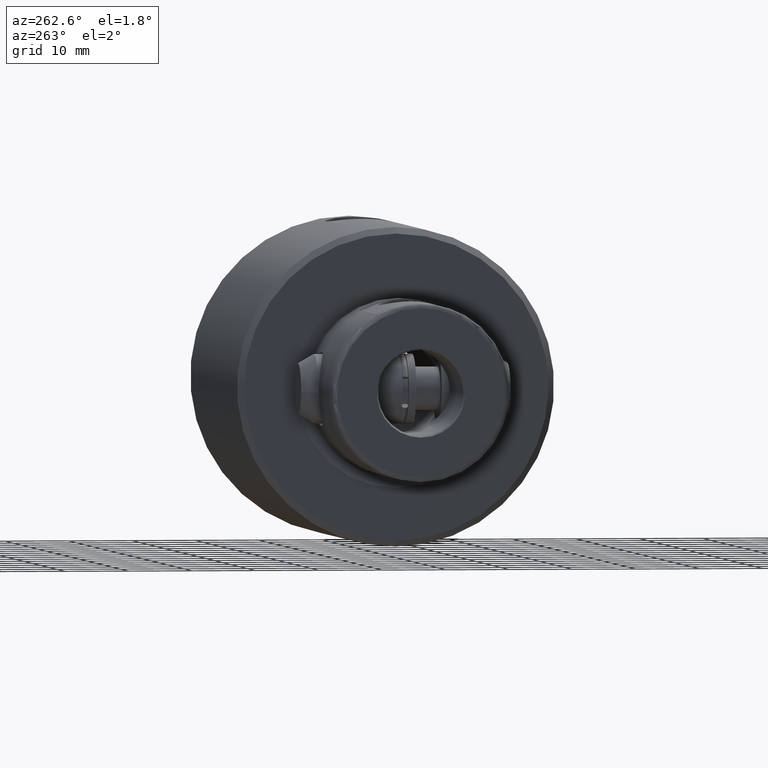
[diagram: clean part render]
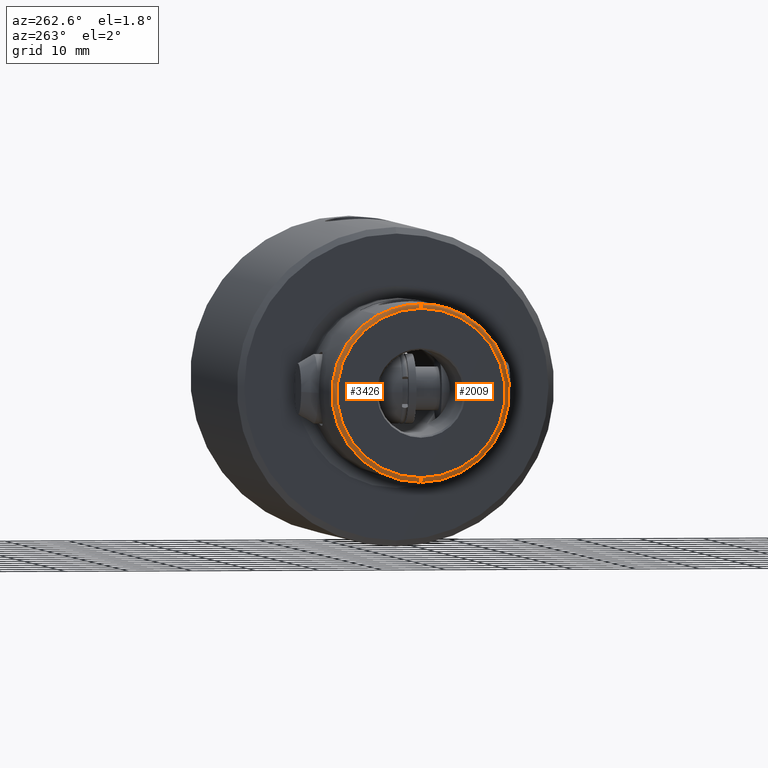
[diagram: same view with one multi-face feature highlighted, each face labeled with its STEP entity id]
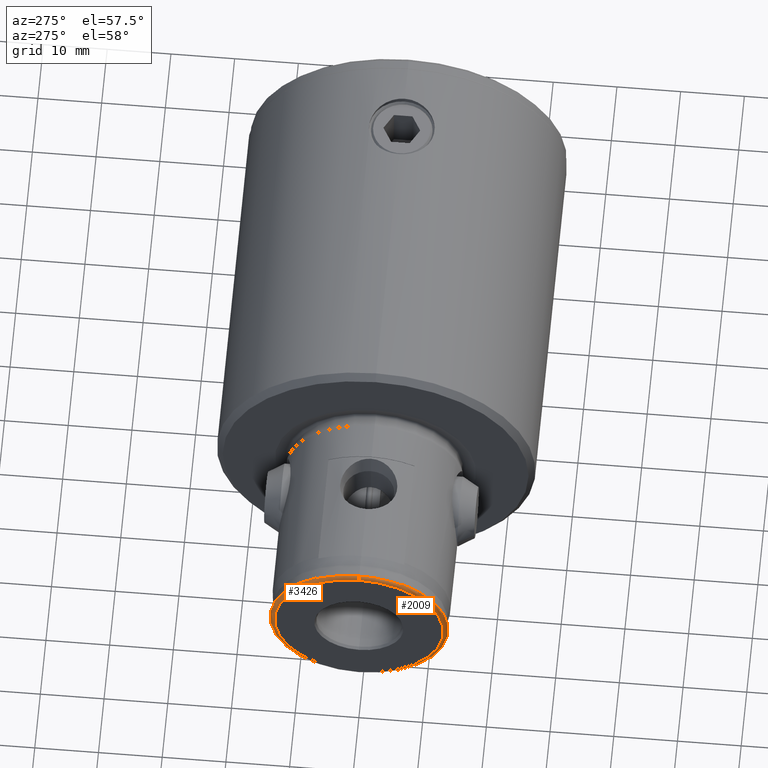
[diagram: same view with one multi-face feature highlighted, each face labeled with its STEP entity id]
A machine part, auxiliary view. The highlighted faces form ONE feature: a constant-radius fillet chain: 2 tangent blend faces with common blend radius 0.8 mm. The faces share edges in the B-rep.
A second angle (auxiliary view) of the same feature is appended — it is thin or edge-on in the first view.
Their STEP definitions:
[1] entity #2009 (Torus):
#238 = DIRECTION ( 'NONE',  ( 1.000000000000000000, 0.0000000000000000000, 0.0000000000000000000 ) ) ;
#351 = CARTESIAN_POINT ( 'NONE',  ( 13.16386104754203500, -4.605516921607581100, 89.62865530472926400 ) ) ;
#356 = FACE_OUTER_BOUND ( 'NONE', #4261, .T. ) ;
#361 = CARTESIAN_POINT ( 'NONE',  ( -13.25838015129042600, 0.0000000000000000000, 89.20000000000000300 ) ) ;
#405 = DIRECTION ( 'NONE',  ( -1.000000000000000000, 0.0000000000000000000, 0.0000000000000000000 ) ) ;
#460 = AXIS2_PLACEMENT_3D ( 'NONE', #361, #3257, #3889 ) ;
#467 = CARTESIAN_POINT ( 'NONE',  ( 12.19529657202551400, -6.750000000000000000, 89.62088637602082000 ) ) ;
#517 = EDGE_CURVE ( 'NONE', #3761, #4556, #982, .T. ) ;
#553 = CARTESIAN_POINT ( 'NONE',  ( 13.25838015129042600, 1.669094400110978000E-015, 90.00000000000000000 ) ) ;
#593 = VERTEX_POINT ( 'NONE', #3763 ) ;
#676 = ORIENTED_EDGE ( 'NONE', *, *, #517, .F. ) ;
#791 = CARTESIAN_POINT ( 'NONE',  ( 12.19529657202551400, -6.750000000000000000, 89.62088637602082000 ) ) ;
#804 = CARTESIAN_POINT ( 'NONE',  ( 12.25558413565015500, -6.750000000000000900, 89.52103479556231500 ) ) ;
#824 = CIRCLE ( 'NONE', #3149, 13.25838015129042600 ) ;
#960 = CARTESIAN_POINT ( 'NONE',  ( -14.00000000000000200, 1.714505518806294800E-015, 89.50000000000000000 ) ) ;
#982 = B_SPLINE_CURVE_WITH_KNOTS ( 'NONE', 3,
 ( #791, #3311, #1520, #2972, #804, #3672 ),
 .UNSPECIFIED., .F., .F.,
 ( 4, 2, 4 ),
 ( 0.005396324849054745000, 0.005465826364165420100, 0.005535327879276095100 ),
 .UNSPECIFIED. ) ;
#990 = CIRCLE ( 'NONE', #3211, 0.8000000000000003800 ) ;
#1141 = DIRECTION ( 'NONE',  ( -1.224646799147353200E-016, 1.000000000000000000, 0.0000000000000000000 ) ) ;
#1174 = CARTESIAN_POINT ( 'NONE',  ( 0.0000000000000000000, 0.0000000000000000000, 89.20000000000000300 ) ) ;
#1257 = B_SPLINE_CURVE_WITH_KNOTS ( 'NONE', 3,
 ( #2156, #2528, #4309, #3619, #351, #1849, #4296, #2544 ),
 .UNSPECIFIED., .F., .F.,
 ( 4, 2, 2, 4 ),
 ( 0.007081884575282259400, 0.01062500524078130100, 0.01239656557353082200, 0.01416812590628034300 ),
 .UNSPECIFIED. ) ;
#1263 = EDGE_CURVE ( 'NONE', #4627, #2722, #824, .T. ) ;
#1378 = EDGE_CURVE ( 'NONE', #2722, #593, #990, .T. ) ;
#1425 = CARTESIAN_POINT ( 'NONE',  ( 12.26529657203607600, -6.750000000000000000, 89.50000000000000000 ) ) ;
#1520 = CARTESIAN_POINT ( 'NONE',  ( 12.22153926287279900, -6.750000000000000900, 89.58194375710877500 ) ) ;
#1645 = ORIENTED_EDGE ( 'NONE', *, *, #1378, .F. ) ;
#1758 = EDGE_CURVE ( 'NONE', #4627, #4107, #2300, .T. ) ;
#1849 = CARTESIAN_POINT ( 'NONE',  ( 12.73098884527543400, -5.699170897946296500, 89.62520944381636000 ) ) ;
#2009 = ADVANCED_FACE ( 'NONE', ( #356 ), #3783, .T. ) ;
#2082 = DIRECTION ( 'NONE',  ( 0.0000000000000000000, 0.0000000000000000000, 1.000000000000000000 ) ) ;
#2156 = CARTESIAN_POINT ( 'NONE',  ( 13.92999999999999800, 1.653045026462912200E-015, 89.63465708186953400 ) ) ;
#2300 = CIRCLE ( 'NONE', #460, 0.7999999999999951600 ) ;
#2319 = AXIS2_PLACEMENT_3D ( 'NONE', #1174, #3649, #405 ) ;
#2359 = AXIS2_PLACEMENT_3D ( 'NONE', #4172, #3432, #238 ) ;
#2528 = CARTESIAN_POINT ( 'NONE',  ( 13.92999999999999600, -1.174280810172254800, 89.63465708186952000 ) ) ;
#2544 = CARTESIAN_POINT ( 'NONE',  ( 12.19529657202551400, -6.750000000000000000, 89.62088637602082000 ) ) ;
#2722 = VERTEX_POINT ( 'NONE', #553 ) ;
#2813 = CARTESIAN_POINT ( 'NONE',  ( -13.25838015129042600, 0.0000000000000000000, 90.00000000000000000 ) ) ;
#2972 = CARTESIAN_POINT ( 'NONE',  ( 12.24488611301794600, -6.750000000000000000, 89.54162868378423900 ) ) ;
#2981 = EDGE_CURVE ( 'NONE', #4107, #4556, #3186, .T. ) ;
#3149 = AXIS2_PLACEMENT_3D ( 'NONE', #4199, #2082, #4539 ) ;
#3172 = ORIENTED_EDGE ( 'NONE', *, *, #2981, .T. ) ;
#3186 = CIRCLE ( 'NONE', #2359, 14.00000000000000200 ) ;
#3211 = AXIS2_PLACEMENT_3D ( 'NONE', #4260, #1141, #3263 ) ;
#3257 = DIRECTION ( 'NONE',  ( -0.0000000000000000000, -1.000000000000000000, -0.0000000000000000000 ) ) ;
#3263 = DIRECTION ( 'NONE',  ( -1.000000000000000000, -1.224646799147353200E-016, 0.0000000000000000000 ) ) ;
#3311 = CARTESIAN_POINT ( 'NONE',  ( 12.20881478883341500, -6.749999999999999100, 89.60176819777662200 ) ) ;
#3336 = ORIENTED_EDGE ( 'NONE', *, *, #1758, .T. ) ;
#3432 = DIRECTION ( 'NONE',  ( 0.0000000000000000000, 0.0000000000000000000, 1.000000000000000000 ) ) ;
#3619 = CARTESIAN_POINT ( 'NONE',  ( 13.34696563774393700, -4.041178847673038800, 89.63009880400024100 ) ) ;
#3649 = DIRECTION ( 'NONE',  ( 0.0000000000000000000, 0.0000000000000000000, -1.000000000000000000 ) ) ;
#3672 = CARTESIAN_POINT ( 'NONE',  ( 12.26529657203607600, -6.750000000000000000, 89.50000000000000000 ) ) ;
#3725 = ORIENTED_EDGE ( 'NONE', *, *, #4480, .F. ) ;
#3761 = VERTEX_POINT ( 'NONE', #467 ) ;
#3763 = CARTESIAN_POINT ( 'NONE',  ( 13.92999999999999800, 1.653045026462912200E-015, 89.63465708186953400 ) ) ;
#3783 = TOROIDAL_SURFACE ( 'NONE', #2319, 13.25838015129042600, 0.8000000000000000400 ) ;
#3889 = DIRECTION ( 'NONE',  ( 0.0000000000000000000, 0.0000000000000000000, -1.000000000000000000 ) ) ;
#4107 = VERTEX_POINT ( 'NONE', #960 ) ;
#4172 = CARTESIAN_POINT ( 'NONE',  ( 0.0000000000000000000, 0.0000000000000000000, 89.50000000000000000 ) ) ;
#4199 = CARTESIAN_POINT ( 'NONE',  ( 0.0000000000000000000, 0.0000000000000000000, 90.00000000000000000 ) ) ;
#4260 = CARTESIAN_POINT ( 'NONE',  ( 13.25838015129042600, 1.623683281415662200E-015, 89.20000000000000300 ) ) ;
#4261 = EDGE_LOOP ( 'NONE', ( #1645, #4592, #3336, #3172, #676, #3725 ) ) ;
#4296 = CARTESIAN_POINT ( 'NONE',  ( 12.48047647049678100, -6.231805032444783300, 89.62320137967007800 ) ) ;
#4309 = CARTESIAN_POINT ( 'NONE',  ( 13.78456435597354900, -2.331398747386031800, 89.63353417096907100 ) ) ;
#4480 = EDGE_CURVE ( 'NONE', #593, #3761, #1257, .T. ) ;
#4539 = DIRECTION ( 'NONE',  ( 1.000000000000000000, 0.0000000000000000000, 0.0000000000000000000 ) ) ;
#4556 = VERTEX_POINT ( 'NONE', #1425 ) ;
#4592 = ORIENTED_EDGE ( 'NONE', *, *, #1263, .F. ) ;
#4627 = VERTEX_POINT ( 'NONE', #2813 ) ;
[2] entity #3426 (Torus):
#248 = EDGE_CURVE ( 'NONE', #2722, #4627, #2705, .T. ) ;
#354 = CARTESIAN_POINT ( 'NONE',  ( 12.25550819673730300, 6.749999999999999100, 89.52119926093880100 ) ) ;
#361 = CARTESIAN_POINT ( 'NONE',  ( -13.25838015129042600, 0.0000000000000000000, 89.20000000000000300 ) ) ;
#386 = CARTESIAN_POINT ( 'NONE',  ( 0.0000000000000000000, 0.0000000000000000000, 90.00000000000000000 ) ) ;
#428 = DIRECTION ( 'NONE',  ( 1.000000000000000000, 0.0000000000000000000, 0.0000000000000000000 ) ) ;
#460 = AXIS2_PLACEMENT_3D ( 'NONE', #361, #3257, #3889 ) ;
#472 = CARTESIAN_POINT ( 'NONE',  ( 12.19529657203607800, 6.750000000000000000, 89.62088637600592700 ) ) ;
#553 = CARTESIAN_POINT ( 'NONE',  ( 13.25838015129042600, 1.669094400110978000E-015, 90.00000000000000000 ) ) ;
#593 = VERTEX_POINT ( 'NONE', #3763 ) ;
#642 = DIRECTION ( 'NONE',  ( -1.000000000000000000, 0.0000000000000000000, 0.0000000000000000000 ) ) ;
#699 = B_SPLINE_CURVE_WITH_KNOTS ( 'NONE', 3,
 ( #2038, #2389, #901, #1691, #3470, #1328, #1993, #4462, #1392, #707 ),
 .UNSPECIFIED., .F., .F.,
 ( 4, 2, 2, 2, 4 ),
 ( 2.279149850657132500E-007, 0.001770642080059365200, 0.003541056245133664600, 0.005311470410207961800, 0.007081884575282259400 ),
 .UNSPECIFIED. ) ;
#707 = CARTESIAN_POINT ( 'NONE',  ( 13.92999999999999800, 1.653045026462912200E-015, 89.63465708186953400 ) ) ;
#901 = CARTESIAN_POINT ( 'NONE',  ( 12.73209195476413100, 5.696882615792217700, 89.62521829621530900 ) ) ;
#960 = CARTESIAN_POINT ( 'NONE',  ( -14.00000000000000200, 1.714505518806294800E-015, 89.50000000000000000 ) ) ;
#990 = CIRCLE ( 'NONE', #3211, 0.8000000000000003800 ) ;
#1068 = CARTESIAN_POINT ( 'NONE',  ( 12.26529657203607500, 6.750000000000000000, 89.50000000000000000 ) ) ;
#1102 = TOROIDAL_SURFACE ( 'NONE', #1391, 13.25838015129042600, 0.8000000000000000400 ) ;
#1141 = DIRECTION ( 'NONE',  ( -1.224646799147353200E-016, 1.000000000000000000, 0.0000000000000000000 ) ) ;
#1254 = ORIENTED_EDGE ( 'NONE', *, *, #1758, .F. ) ;
#1323 = EDGE_CURVE ( 'NONE', #3290, #3828, #1992, .T. ) ;
#1328 = CARTESIAN_POINT ( 'NONE',  ( 13.63590490728992300, 2.913427339630365600, 89.63236717108840400 ) ) ;
#1378 = EDGE_CURVE ( 'NONE', #2722, #593, #990, .T. ) ;
#1391 = AXIS2_PLACEMENT_3D ( 'NONE', #4565, #1406, #642 ) ;
#1392 = CARTESIAN_POINT ( 'NONE',  ( 13.92999999999999400, 0.5867605358032789200, 89.63465708186953400 ) ) ;
#1406 = DIRECTION ( 'NONE',  ( 0.0000000000000000000, 0.0000000000000000000, -1.000000000000000000 ) ) ;
#1412 = ORIENTED_EDGE ( 'NONE', *, *, #4001, .F. ) ;
#1621 = CIRCLE ( 'NONE', #4330, 14.00000000000000200 ) ;
#1691 = CARTESIAN_POINT ( 'NONE',  ( 13.16597463149938500, 4.599674500511639500, 89.62867205815246100 ) ) ;
#1758 = EDGE_CURVE ( 'NONE', #4627, #4107, #2300, .T. ) ;
#1864 = EDGE_LOOP ( 'NONE', ( #3070, #4234, #1412, #3984, #3230, #1254 ) ) ;
#1992 = B_SPLINE_CURVE_WITH_KNOTS ( 'NONE', 3,
 ( #1068, #354, #3909, #2109, #2500, #2158 ),
 .UNSPECIFIED., .F., .F.,
 ( 4, 2, 4 ),
 ( 0.005295658886349159800, 0.005364508674259188900, 0.005433358462169217900 ),
 .UNSPECIFIED. ) ;
#1993 = CARTESIAN_POINT ( 'NONE',  ( 13.74532738091459500, 2.340789719161815000, 89.63322036770259200 ) ) ;
#2038 = CARTESIAN_POINT ( 'NONE',  ( 12.19529657203607800, 6.750000000000000000, 89.62088637600592700 ) ) ;
#2060 = CARTESIAN_POINT ( 'NONE',  ( 0.0000000000000000000, 0.0000000000000000000, 89.50000000000000000 ) ) ;
#2109 = CARTESIAN_POINT ( 'NONE',  ( 12.22137047721828300, 6.750000000000000000, 89.58221679704956800 ) ) ;
#2158 = CARTESIAN_POINT ( 'NONE',  ( 12.19529657203607800, 6.750000000000000000, 89.62088637600592700 ) ) ;
#2300 = CIRCLE ( 'NONE', #460, 0.7999999999999951600 ) ;
#2389 = CARTESIAN_POINT ( 'NONE',  ( 12.48029220229724200, 6.232139862683363100, 89.62319988383691800 ) ) ;
#2478 = DIRECTION ( 'NONE',  ( 0.0000000000000000000, 0.0000000000000000000, 1.000000000000000000 ) ) ;
#2500 = CARTESIAN_POINT ( 'NONE',  ( 12.20868797188104800, 6.750000000000000900, 89.60194754902698800 ) ) ;
#2613 = AXIS2_PLACEMENT_3D ( 'NONE', #386, #2478, #428 ) ;
#2705 = CIRCLE ( 'NONE', #2613, 13.25838015129042600 ) ;
#2722 = VERTEX_POINT ( 'NONE', #553 ) ;
#2813 = CARTESIAN_POINT ( 'NONE',  ( -13.25838015129042600, 0.0000000000000000000, 90.00000000000000000 ) ) ;
#2920 = EDGE_CURVE ( 'NONE', #3290, #4107, #1621, .T. ) ;
#3070 = ORIENTED_EDGE ( 'NONE', *, *, #248, .F. ) ;
#3211 = AXIS2_PLACEMENT_3D ( 'NONE', #4260, #1141, #3263 ) ;
#3230 = ORIENTED_EDGE ( 'NONE', *, *, #2920, .T. ) ;
#3257 = DIRECTION ( 'NONE',  ( -0.0000000000000000000, -1.000000000000000000, -0.0000000000000000000 ) ) ;
#3263 = DIRECTION ( 'NONE',  ( -1.000000000000000000, -1.224646799147353200E-016, 0.0000000000000000000 ) ) ;
#3290 = VERTEX_POINT ( 'NONE', #4460 ) ;
#3426 = ADVANCED_FACE ( 'NONE', ( #3520 ), #1102, .T. ) ;
#3470 = CARTESIAN_POINT ( 'NONE',  ( 13.34622519796226900, 4.042868984835159600, 89.63009294004029900 ) ) ;
#3520 = FACE_OUTER_BOUND ( 'NONE', #1864, .T. ) ;
#3763 = CARTESIAN_POINT ( 'NONE',  ( 13.92999999999999800, 1.653045026462912200E-015, 89.63465708186953400 ) ) ;
#3768 = DIRECTION ( 'NONE',  ( 0.0000000000000000000, 0.0000000000000000000, 1.000000000000000000 ) ) ;
#3828 = VERTEX_POINT ( 'NONE', #472 ) ;
#3889 = DIRECTION ( 'NONE',  ( 0.0000000000000000000, 0.0000000000000000000, -1.000000000000000000 ) ) ;
#3909 = CARTESIAN_POINT ( 'NONE',  ( 12.24475339770087400, 6.750000000000000900, 89.54187603623090300 ) ) ;
#3984 = ORIENTED_EDGE ( 'NONE', *, *, #1323, .F. ) ;
#4001 = EDGE_CURVE ( 'NONE', #3828, #593, #699, .T. ) ;
#4107 = VERTEX_POINT ( 'NONE', #960 ) ;
#4234 = ORIENTED_EDGE ( 'NONE', *, *, #1378, .T. ) ;
#4260 = CARTESIAN_POINT ( 'NONE',  ( 13.25838015129042600, 1.623683281415662200E-015, 89.20000000000000300 ) ) ;
#4330 = AXIS2_PLACEMENT_3D ( 'NONE', #2060, #3768, #4505 ) ;
#4460 = CARTESIAN_POINT ( 'NONE',  ( 12.26529657203607500, 6.750000000000000000, 89.50000000000000000 ) ) ;
#4462 = CARTESIAN_POINT ( 'NONE',  ( 13.89249843748362600, 1.179493338026759200, 89.63436628532257100 ) ) ;
#4505 = DIRECTION ( 'NONE',  ( 1.000000000000000000, 0.0000000000000000000, 0.0000000000000000000 ) ) ;
#4565 = CARTESIAN_POINT ( 'NONE',  ( 0.0000000000000000000, 0.0000000000000000000, 89.20000000000000300 ) ) ;
#4627 = VERTEX_POINT ( 'NONE', #2813 ) ;